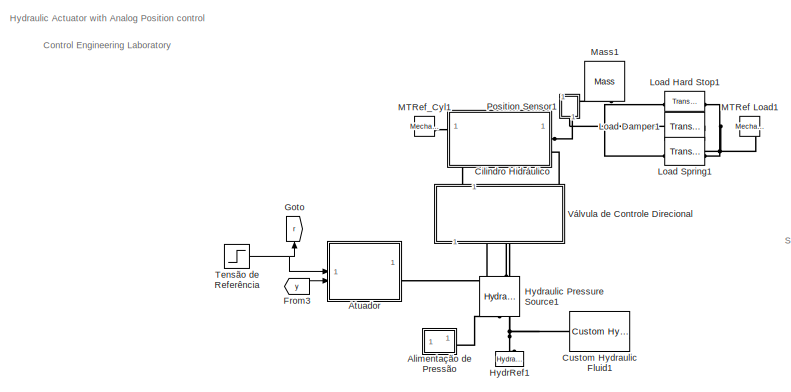
[diagram: root canvas - part 1/2, left side, full height]
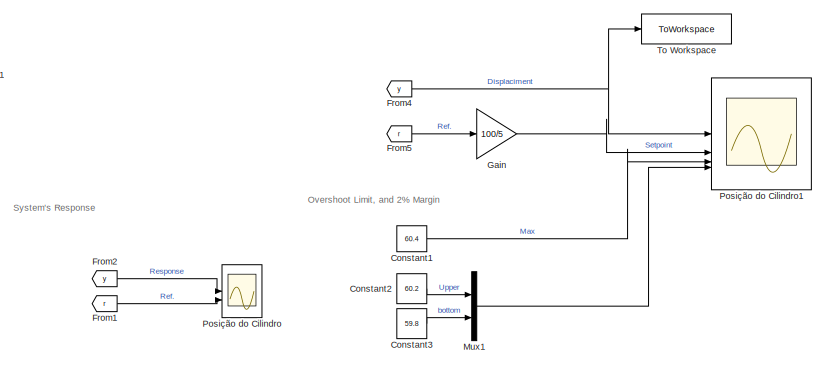
[diagram: root canvas - part 2/2, right side, full height]
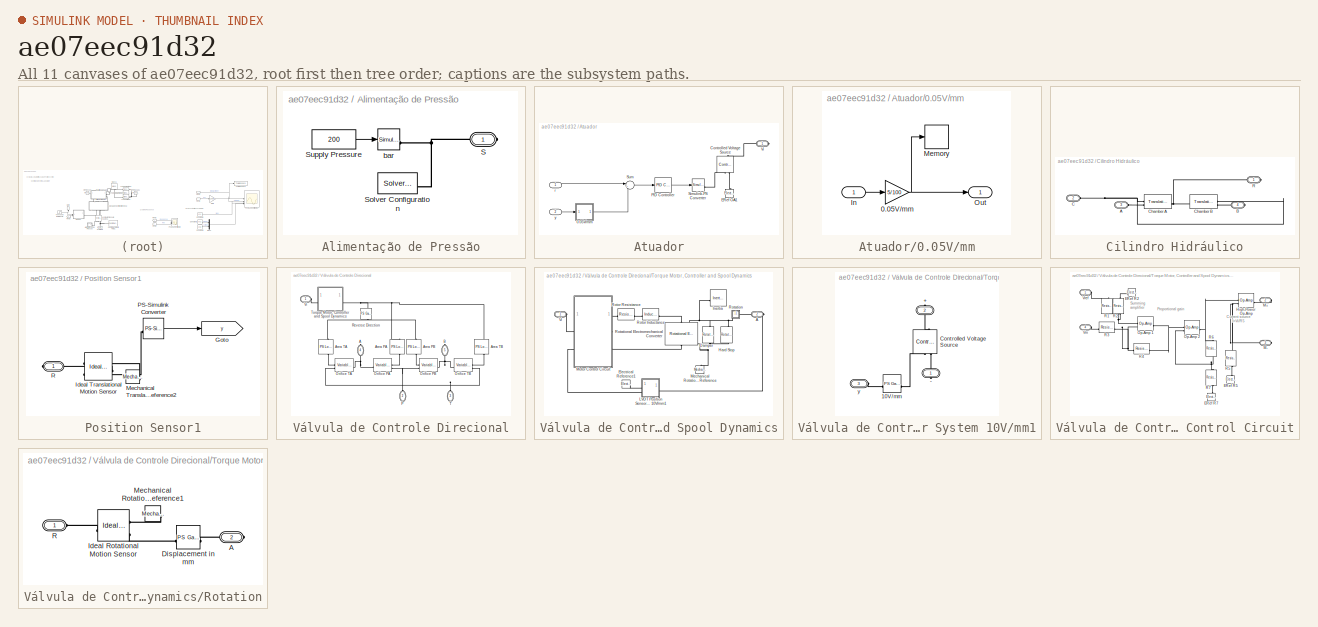
[diagram: thumbnail index - all 11 canvases of the model, root first then tree order]
MODEL slx_ae07eec91d32
KIND model
CONFIG AbsTol = 1e-3
CONFIG EnableMultiTasking = on
CONFIG FixedStep = auto
CONFIG MaxStep = 0.02
CONFIG MinStep = auto
CONFIG RelTol = 1e-3
CONFIG SampleTimeConstraint = Unconstrained
CONFIG SolverName = VariableStepAuto
CONFIG StartTime = 0.0
CONFIG StopTime = 1.5
BLOCK [SubSystem] Alimentação de Pressão
BLOCK [PMIOPort] Alimentação de Pressão/S
  Side = Right
BLOCK [Reference] Alimentação de Pressão/Solver Configuration  REF=nesl_utility/Solver
Configuration
  SourceBlock = nesl_utility/Solver\nConfiguration
  SourceType = Solver\nConfiguration
BLOCK [Constant] Alimentação de Pressão/Supply Pressure
  Value = 200
BLOCK [Reference] Alimentação de Pressão/bar  REF=nesl_utility/Simulink-PS
Converter
  SourceBlock = nesl_utility/Simulink-PS\nConverter
  SourceType = Simulink-PS\nConverter
BLOCK [SubSystem] Atuador
  NameLocation = top
BLOCK [SubSystem] Atuador/0.05V//mm
BLOCK [Gain] Atuador/0.05V//mm/0.05V//mm
  Gain = 5/100
BLOCK [Inport] Atuador/0.05V//mm/In
BLOCK [Memory] Atuador/0.05V//mm/Memory
  Commented = on
BLOCK [Outport] Atuador/0.05V//mm/Out
  VectorParamsAs1DForOutWhenUnconnected = off
BLOCK [Reference] Atuador/Controlled Voltage Source  REF=fl_lib/Electrical/Electrical Sources/Controlled Voltage
Source
  NameLocation = right
  SourceBlock = fl_lib/Electrical/Electrical Sources/Controlled Voltage\nSource
  SourceType = Controlled Voltage\nSource
BLOCK [Reference] Atuador/ERef OA1  REF=fl_lib/Electrical/Electrical Elements/Electrical Reference
  NameLocation = right
  SourceBlock = fl_lib/Electrical/Electrical Elements/Electrical Reference
  SourceType = Electrical Reference
BLOCK [Reference] Atuador/PID Controller  REF=slpidlib/PID Controller
  LibrarySourceBlock = simulink/Continuous/PID Controller
  SourceBlock = slpidlib/PID Controller
  SourceType = PID 1dof
BLOCK [Reference] Atuador/Simulink-PS Converter  REF=nesl_utility/Simulink-PS
Converter
  SourceBlock = nesl_utility/Simulink-PS\nConverter
  SourceType = Simulink-PS\nConverter
BLOCK [Sum] Atuador/Sum
  Inputs = |+-
BLOCK [PMIOPort] Atuador/Vi
  Side = Right
BLOCK [Inport] Atuador/r
BLOCK [Inport] Atuador/y
  Port = 2
BLOCK [SubSystem] Cilindro Hidráulico
  NameLocation = top
BLOCK [PMIOPort] Cilindro Hidráulico/A
  Port = 3
  Side = Left
BLOCK [PMIOPort] Cilindro Hidráulico/B
  Port = 4
  Side = Right
BLOCK [PMIOPort] Cilindro Hidráulico/C
  NameLocation = top
  Port = 2
  Side = Left
BLOCK [Reference] Cilindro Hidráulico/Chamber A  REF=fl_lib/Hydraulic/Hydraulic Elements/Translational
Hydro-Mechanical
Converter
  SourceBlock = fl_lib/Hydraulic/Hydraulic Elements/Translational\nHydro-Mechanical\nConverter
  SourceType = Translational\nHydro-Mechanical\nConverter
BLOCK [Reference] Cilindro Hidráulico/Chamber B  REF=fl_lib/Hydraulic/Hydraulic Elements/Translational
Hydro-Mechanical
Converter
  SourceBlock = fl_lib/Hydraulic/Hydraulic Elements/Translational\nHydro-Mechanical\nConverter
  SourceType = Translational\nHydro-Mechanical\nConverter
BLOCK [PMIOPort] Cilindro Hidráulico/R
  Side = Right
BLOCK [Constant] Constant1
  Value = 60.4
BLOCK [Constant] Constant2
  Value = 60.2
BLOCK [Constant] Constant3
  Value = 59.8
BLOCK [Reference] Custom Hydraulic Fluid1  REF=fl_lib/Hydraulic/Hydraulic Utilities/Custom Hydraulic
Fluid
  NameLocation = top
  SourceBlock = fl_lib/Hydraulic/Hydraulic Utilities/Custom Hydraulic\nFluid
  SourceType = Custom Hydraulic\nFluid
BLOCK [From] From1
  GotoTag = r
BLOCK [From] From2
  GotoTag = y
  TagVisibility = global
BLOCK [From] From3
  GotoTag = y
  TagVisibility = global
BLOCK [From] From4
  GotoTag = y
  TagVisibility = global
BLOCK [From] From5
  GotoTag = r
BLOCK [Gain] Gain
  Gain = 100/5
BLOCK [Goto] Goto
  GotoTag = r
  NameLocation = right
BLOCK [Reference] HydrRef1  REF=fl_lib/Hydraulic/Hydraulic Elements/Hydraulic Reference
  NameLocation = right
  SourceBlock = fl_lib/Hydraulic/Hydraulic Elements/Hydraulic Reference
  SourceType = Hydraulic Reference
BLOCK [Reference] Hydraulic Pressure Source1  REF=fl_lib/Hydraulic/Hydraulic Sources/Hydraulic Pressure
Source
  NameLocation = left
  SourceBlock = fl_lib/Hydraulic/Hydraulic Sources/Hydraulic Pressure\nSource
  SourceType = Hydraulic Pressure\nSource
BLOCK [Reference] Load Damper1  REF=fl_lib/Mechanical/Translational
Elements/Translational Damper
  SourceBlock = fl_lib/Mechanical/Translational\nElements/Translational Damper
  SourceType = Translational Damper
BLOCK [Reference] Load Hard Stop1  REF=fl_lib/Mechanical/Translational
Elements/Translational Hard
Stop
  NameLocation = top
  SourceBlock = fl_lib/Mechanical/Translational\nElements/Translational Hard\nStop
  SourceType = Translational Hard\nStop
BLOCK [Reference] Load Spring1  REF=fl_lib/Mechanical/Translational
Elements/Translational Spring
  SourceBlock = fl_lib/Mechanical/Translational\nElements/Translational Spring
  SourceType = Translational Spring
BLOCK [Reference] MTRef Load1  REF=fl_lib/Mechanical/Translational
Elements/Mechanical
Translational
Reference
  NameLocation = top
  SourceBlock = fl_lib/Mechanical/Translational\nElements/Mechanical\nTranslational\nReference
  SourceType = Mechanical\nTranslational\nReference
BLOCK [Reference] MTRef_Cyl1  REF=fl_lib/Mechanical/Translational
Elements/Mechanical
Translational
Reference
  SourceBlock = fl_lib/Mechanical/Translational\nElements/Mechanical\nTranslational\nReference
  SourceType = Mechanical\nTranslational\nReference
BLOCK [Reference] Mass1  REF=fl_lib/Mechanical/Translational
Elements/Mass
  NameLocation = right
  SourceBlock = fl_lib/Mechanical/Translational\nElements/Mass
  SourceType = Mass
BLOCK [Mux] Mux1
  DisplayOption = bar
  Inputs = 2
BLOCK [SubSystem] Position Sensor1
  NameLocation = right
BLOCK [Goto] Position Sensor1/Goto
  GotoTag = y
  TagVisibility = global
BLOCK [Reference] Position Sensor1/Ideal Translational Motion Sensor  REF=fl_lib/Mechanical/Mechanical Sensors/Ideal Translational
Motion Sensor
  NameLocation = top
  SourceBlock = fl_lib/Mechanical/Mechanical Sensors/Ideal Translational\nMotion Sensor
  SourceType = Ideal Translational\nMotion Sensor
BLOCK [Reference] Position Sensor1/Mechanical Translational Reference2  REF=fl_lib/Mechanical/Translational
Elements/Mechanical
Translational
Reference
  NameLocation = top
  SourceBlock = fl_lib/Mechanical/Translational\nElements/Mechanical\nTranslational\nReference
  SourceType = Mechanical\nTranslational\nReference
BLOCK [Reference] Position Sensor1/PS-Simulink Converter  REF=nesl_utility/PS-Simulink
Converter
  NameLocation = top
  SourceBlock = nesl_utility/PS-Simulink\nConverter
  SourceType = PS-Simulink\nConverter
BLOCK [PMIOPort] Position Sensor1/R
  Side = Right
BLOCK [Scope] Posição do Cilindro
  Floating = off
  NumInputPorts = 2
  ScopeSpecificationString = Simulink.scopes.TimeScopeBlockCfg('CurrentConfiguration', extmgr.ConfigurationSet(extmgr.Configuration('Core','General UI',true,'FigureColor',[0.501960784313725 0.501960784313725 0.501960784313725]),extmgr.Configuration('Core','Source UI',true),extmgr.Configuration('Sources','WiredSimulink',true,'DataLoggingVariableName','ScopeData1','DataLoggingSaveFormat','Array','DataLoggingDecimation','1'),ext...<+3738ch>
  Tag = PublishScope
BLOCK [Scope] Posição do Cilindro1
  Floating = off
  NumInputPorts = 4
  ScopeSpecificationString = Simulink.scopes.TimeScopeBlockCfg('CurrentConfiguration', extmgr.ConfigurationSet(extmgr.Configuration('Core','General UI',true,'FigureColor',[0.501960784313725 0.501960784313725 0.501960784313725]),extmgr.Configuration('Core','Source UI',true),extmgr.Configuration('Sources','WiredSimulink',true,'DataLoggingVariableName','ScopeData1','DataLoggingSaveFormat','Array','DataLoggingDecimation','1'),ext...<+2143ch>
  Tag = PublishScope
BLOCK [Step] Tensão de Referência
  After = 3
  Before = 2.5
  SampleTime = 0
  Time = 0.1
BLOCK [ToWorkspace] To Workspace
  FixptAsFi = on
  MaxDataPoints = inf
  SampleTime = -1
  SaveFormat = Structure With Time
  VariableName = simout
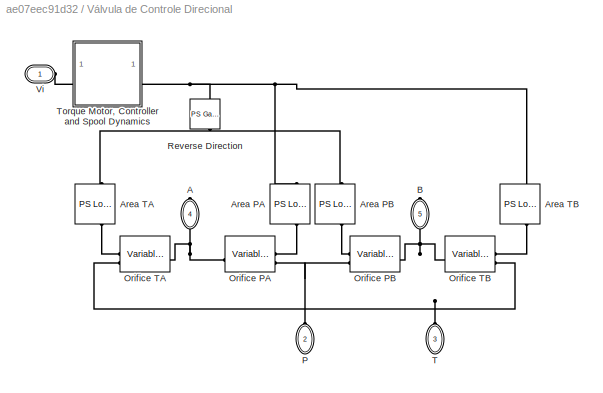
BLOCK [SubSystem] Válvula de Controle Direcional
  NameLocation = right
  Tag = PublishSubsystem
BLOCK [PMIOPort] Válvula de Controle Direcional/A
  NameLocation = right
  Port = 4
  Side = Right
  Tag = PMCPort
BLOCK [Reference] Válvula de Controle Direcional/Area PA  REF=fl_ps_legacy_lib/Legacy Physical
Signals/Lookup Tables/PS Lookup Table (1D)
  NameLocation = left
  SourceBlock = fl_ps_legacy_lib/Legacy Physical\nSignals/Lookup Tables/PS Lookup Table (1D)
  SourceType = PS Lookup Table (1D)
BLOCK [Reference] Válvula de Controle Direcional/Area PB  REF=fl_ps_legacy_lib/Legacy Physical
Signals/Lookup Tables/PS Lookup Table (1D)
  NameLocation = right
  SourceBlock = fl_ps_legacy_lib/Legacy Physical\nSignals/Lookup Tables/PS Lookup Table (1D)
  SourceType = PS Lookup Table (1D)
BLOCK [Reference] Válvula de Controle Direcional/Area TA  REF=fl_ps_legacy_lib/Legacy Physical
Signals/Lookup Tables/PS Lookup Table (1D)
  NameLocation = right
  SourceBlock = fl_ps_legacy_lib/Legacy Physical\nSignals/Lookup Tables/PS Lookup Table (1D)
  SourceType = PS Lookup Table (1D)
BLOCK [Reference] Válvula de Controle Direcional/Area TB  REF=fl_ps_legacy_lib/Legacy Physical
Signals/Lookup Tables/PS Lookup Table (1D)
  NameLocation = left
  SourceBlock = fl_ps_legacy_lib/Legacy Physical\nSignals/Lookup Tables/PS Lookup Table (1D)
  SourceType = PS Lookup Table (1D)
BLOCK [PMIOPort] Válvula de Controle Direcional/B
  NameLocation = right
  Port = 5
  Side = Right
  Tag = PMCPort
BLOCK [Reference] Válvula de Controle Direcional/Orifice PA  REF=fl_lib/Hydraulic/Hydraulic Elements/Variable Area
Hydraulic Orifice
  SourceBlock = fl_lib/Hydraulic/Hydraulic Elements/Variable Area\nHydraulic Orifice
  SourceType = Variable Area\nHydraulic Orifice
BLOCK [Reference] Válvula de Controle Direcional/Orifice PB  REF=fl_lib/Hydraulic/Hydraulic Elements/Variable Area
Hydraulic Orifice
  SourceBlock = fl_lib/Hydraulic/Hydraulic Elements/Variable Area\nHydraulic Orifice
  SourceType = Variable Area\nHydraulic Orifice
BLOCK [Reference] Válvula de Controle Direcional/Orifice TA  REF=fl_lib/Hydraulic/Hydraulic Elements/Variable Area
Hydraulic Orifice
  SourceBlock = fl_lib/Hydraulic/Hydraulic Elements/Variable Area\nHydraulic Orifice
  SourceType = Variable Area\nHydraulic Orifice
BLOCK [Reference] Válvula de Controle Direcional/Orifice TB  REF=fl_lib/Hydraulic/Hydraulic Elements/Variable Area
Hydraulic Orifice
  SourceBlock = fl_lib/Hydraulic/Hydraulic Elements/Variable Area\nHydraulic Orifice
  SourceType = Variable Area\nHydraulic Orifice
BLOCK [PMIOPort] Válvula de Controle Direcional/P
  NameLocation = right
  Port = 2
  Side = Left
  Tag = PMCPort
BLOCK [Reference] Válvula de Controle Direcional/Reverse Direction  REF=fl_ps_legacy_lib/Legacy Physical
Signals/Functions/PS Gain
  NameLocation = right
  SourceBlock = fl_ps_legacy_lib/Legacy Physical\nSignals/Functions/PS Gain
  SourceType = PS Gain
BLOCK [PMIOPort] Válvula de Controle Direcional/T
  NameLocation = right
  Port = 3
  Side = Left
  Tag = PMCPort
BLOCK [SubSystem] Válvula de Controle Direcional/Torque Motor, Controller and Spool Dynamics
BLOCK [PMIOPort] Válvula de Controle Direcional/Torque Motor, Controller and Spool Dynamics/A
  Port = 2
  Side = Right
BLOCK [Reference] Válvula de Controle Direcional/Torque Motor, Controller and Spool Dynamics/Damper  REF=fl_lib/Mechanical/Rotational Elements/Rotational Damper
  NameLocation = right
  SourceBlock = fl_lib/Mechanical/Rotational Elements/Rotational Damper
  SourceType = Rotational Damper
BLOCK [Reference] Válvula de Controle Direcional/Torque Motor, Controller and Spool Dynamics/Electrical Reference1  REF=fl_lib/Electrical/Electrical Elements/Electrical Reference
  NameLocation = top
  SourceBlock = fl_lib/Electrical/Electrical Elements/Electrical Reference
  SourceType = Electrical Reference
BLOCK [Reference] Válvula de Controle Direcional/Torque Motor, Controller and Spool Dynamics/Hard Stop  REF=fl_lib/Mechanical/Rotational Elements/Rotational Hard Stop
  NameLocation = right
  SourceBlock = fl_lib/Mechanical/Rotational Elements/Rotational Hard Stop
  SourceType = Rotational Hard Stop
BLOCK [Reference] Válvula de Controle Direcional/Torque Motor, Controller and Spool Dynamics/Inertia  REF=fl_lib/Mechanical/Rotational Elements/Inertia
  SourceBlock = fl_lib/Mechanical/Rotational Elements/Inertia
  SourceType = Inertia
BLOCK [SubSystem] Válvula de Controle Direcional/Torque Motor, Controller and Spool Dynamics/LVDT Position Sensor System 10V//mm1
BLOCK [PMIOPort] Válvula de Controle Direcional/Torque Motor, Controller and Spool Dynamics/LVDT Position Sensor System 10V//mm1/+
  NameLocation = right
  Port = 2
  Side = Right
BLOCK [PMIOPort] Válvula de Controle Direcional/Torque Motor, Controller and Spool Dynamics/LVDT Position Sensor System 10V//mm1/-
  NameLocation = right
  Side = Right
BLOCK [Reference] Válvula de Controle Direcional/Torque Motor, Controller and Spool Dynamics/LVDT Position Sensor System 10V//mm1/10V//mm  REF=fl_ps_legacy_lib/Legacy Physical
Signals/Functions/PS Gain
  SourceBlock = fl_ps_legacy_lib/Legacy Physical\nSignals/Functions/PS Gain
  SourceType = PS Gain
BLOCK [Reference] Válvula de Controle Direcional/Torque Motor, Controller and Spool Dynamics/LVDT Position Sensor System 10V//mm1/Controlled Voltage Source  REF=fl_lib/Electrical/Electrical Sources/Controlled Voltage
Source
  NameLocation = right
  SourceBlock = fl_lib/Electrical/Electrical Sources/Controlled Voltage\nSource
  SourceType = Controlled Voltage\nSource
BLOCK [PMIOPort] Válvula de Controle Direcional/Torque Motor, Controller and Spool Dynamics/LVDT Position Sensor System 10V//mm1/y
  Port = 3
  Side = Left
BLOCK [Reference] Válvula de Controle Direcional/Torque Motor, Controller and Spool Dynamics/Mechanical Rotational Reference  REF=fl_lib/Mechanical/Rotational Elements/Mechanical
Rotational Reference
  NameLocation = right
  SourceBlock = fl_lib/Mechanical/Rotational Elements/Mechanical\nRotational Reference
  SourceType = Mechanical\nRotational Reference
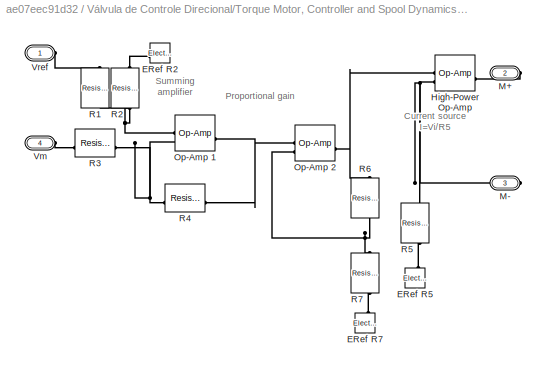
BLOCK [SubSystem] Válvula de Controle Direcional/Torque Motor, Controller and Spool Dynamics/Motor Control Circuit
  Tag = PublishSubsystem
BLOCK [Reference] Válvula de Controle Direcional/Torque Motor, Controller and Spool Dynamics/Motor Control Circuit/ERef R2  REF=fl_lib/Electrical/Electrical Elements/Electrical Reference
  NameLocation = top
  SourceBlock = fl_lib/Electrical/Electrical Elements/Electrical Reference
  SourceType = Electrical Reference
BLOCK [Reference] Válvula de Controle Direcional/Torque Motor, Controller and Spool Dynamics/Motor Control Circuit/ERef R5  REF=fl_lib/Electrical/Electrical Elements/Electrical Reference
  NameLocation = right
  SourceBlock = fl_lib/Electrical/Electrical Elements/Electrical Reference
  SourceType = Electrical Reference
BLOCK [Reference] Válvula de Controle Direcional/Torque Motor, Controller and Spool Dynamics/Motor Control Circuit/ERef R7  REF=fl_lib/Electrical/Electrical Elements/Electrical Reference
  NameLocation = left
  SourceBlock = fl_lib/Electrical/Electrical Elements/Electrical Reference
  SourceType = Electrical Reference
BLOCK [Reference] Válvula de Controle Direcional/Torque Motor, Controller and Spool Dynamics/Motor Control Circuit/High-Power Op-Amp  REF=fl_lib/Electrical/Electrical Elements/Op-Amp
  NameLocation = top
  SourceBlock = fl_lib/Electrical/Electrical Elements/Op-Amp
  SourceType = Op-Amp
BLOCK [PMIOPort] Válvula de Controle Direcional/Torque Motor, Controller and Spool Dynamics/Motor Control Circuit/M+
  Port = 2
  Side = Right
BLOCK [PMIOPort] Válvula de Controle Direcional/Torque Motor, Controller and Spool Dynamics/Motor Control Circuit/M-
  Port = 3
  Side = Right
BLOCK [Reference] Válvula de Controle Direcional/Torque Motor, Controller and Spool Dynamics/Motor Control Circuit/Op-Amp 1  REF=fl_lib/Electrical/Electrical Elements/Op-Amp
  SourceBlock = fl_lib/Electrical/Electrical Elements/Op-Amp
  SourceType = Op-Amp
BLOCK [Reference] Válvula de Controle Direcional/Torque Motor, Controller and Spool Dynamics/Motor Control Circuit/Op-Amp 2  REF=fl_lib/Electrical/Electrical Elements/Op-Amp
  SourceBlock = fl_lib/Electrical/Electrical Elements/Op-Amp
  SourceType = Op-Amp
BLOCK [Reference] Válvula de Controle Direcional/Torque Motor, Controller and Spool Dynamics/Motor Control Circuit/R1  REF=fl_lib/Electrical/Electrical Elements/Resistor
  NameLocation = left
  SourceBlock = fl_lib/Electrical/Electrical Elements/Resistor
  SourceType = Resistor
BLOCK [Reference] Válvula de Controle Direcional/Torque Motor, Controller and Spool Dynamics/Motor Control Circuit/R2  REF=fl_lib/Electrical/Electrical Elements/Resistor
  NameLocation = right
  SourceBlock = fl_lib/Electrical/Electrical Elements/Resistor
  SourceType = Resistor
BLOCK [Reference] Válvula de Controle Direcional/Torque Motor, Controller and Spool Dynamics/Motor Control Circuit/R3  REF=fl_lib/Electrical/Electrical Elements/Resistor
  SourceBlock = fl_lib/Electrical/Electrical Elements/Resistor
  SourceType = Resistor
BLOCK [Reference] Válvula de Controle Direcional/Torque Motor, Controller and Spool Dynamics/Motor Control Circuit/R4  REF=fl_lib/Electrical/Electrical Elements/Resistor
  SourceBlock = fl_lib/Electrical/Electrical Elements/Resistor
  SourceType = Resistor
BLOCK [Reference] Válvula de Controle Direcional/Torque Motor, Controller and Spool Dynamics/Motor Control Circuit/R5  REF=fl_lib/Electrical/Electrical Elements/Resistor
  NameLocation = right
  SourceBlock = fl_lib/Electrical/Electrical Elements/Resistor
  SourceType = Resistor
BLOCK [Reference] Válvula de Controle Direcional/Torque Motor, Controller and Spool Dynamics/Motor Control Circuit/R6  REF=fl_lib/Electrical/Electrical Elements/Resistor
  NameLocation = left
  SourceBlock = fl_lib/Electrical/Electrical Elements/Resistor
  SourceType = Resistor
BLOCK [Reference] Válvula de Controle Direcional/Torque Motor, Controller and Spool Dynamics/Motor Control Circuit/R7  REF=fl_lib/Electrical/Electrical Elements/Resistor
  NameLocation = left
  SourceBlock = fl_lib/Electrical/Electrical Elements/Resistor
  SourceType = Resistor
BLOCK [PMIOPort] Válvula de Controle Direcional/Torque Motor, Controller and Spool Dynamics/Motor Control Circuit/Vm
  Port = 4
  Side = Left
BLOCK [PMIOPort] Válvula de Controle Direcional/Torque Motor, Controller and Spool Dynamics/Motor Control Circuit/Vref
  Side = Left
BLOCK [SubSystem] Válvula de Controle Direcional/Torque Motor, Controller and Spool Dynamics/Rotation
BLOCK [PMIOPort] Válvula de Controle Direcional/Torque Motor, Controller and Spool Dynamics/Rotation/A
  Port = 2
  Side = Right
BLOCK [Reference] Válvula de Controle Direcional/Torque Motor, Controller and Spool Dynamics/Rotation/Displacement in mm  REF=fl_ps_legacy_lib/Legacy Physical
Signals/Functions/PS Gain
  SourceBlock = fl_ps_legacy_lib/Legacy Physical\nSignals/Functions/PS Gain
  SourceType = PS Gain
BLOCK [Reference] Válvula de Controle Direcional/Torque Motor, Controller and Spool Dynamics/Rotation/Ideal Rotational Motion Sensor  REF=fl_lib/Mechanical/Mechanical Sensors/Ideal Rotational
Motion Sensor
  SourceBlock = fl_lib/Mechanical/Mechanical Sensors/Ideal Rotational\nMotion Sensor
  SourceType = Ideal Rotational\nMotion Sensor
BLOCK [Reference] Válvula de Controle Direcional/Torque Motor, Controller and Spool Dynamics/Rotation/Mechanical Rotational Reference1  REF=fl_lib/Mechanical/Rotational Elements/Mechanical
Rotational Reference
  NameLocation = top
  SourceBlock = fl_lib/Mechanical/Rotational Elements/Mechanical\nRotational Reference
  SourceType = Mechanical\nRotational Reference
BLOCK [PMIOPort] Válvula de Controle Direcional/Torque Motor, Controller and Spool Dynamics/Rotation/R
  Side = Left
BLOCK [Reference] Válvula de Controle Direcional/Torque Motor, Controller and Spool Dynamics/Rotational Electromechanical Converter  REF=fl_lib/Electrical/Electrical Elements/Rotational
Electromechanical
Converter
  NameLocation = left
  SourceBlock = fl_lib/Electrical/Electrical Elements/Rotational\nElectromechanical\nConverter
  SourceType = Rotational\nElectromechanical\nConverter
BLOCK [Reference] Válvula de Controle Direcional/Torque Motor, Controller and Spool Dynamics/Rotor Inductance  REF=fl_lib/Electrical/Electrical Elements/Inductor
  SourceBlock = fl_lib/Electrical/Electrical Elements/Inductor
  SourceType = Inductor
BLOCK [Reference] Válvula de Controle Direcional/Torque Motor, Controller and Spool Dynamics/Rotor Resistance  REF=fl_lib/Electrical/Electrical Elements/Resistor
  SourceBlock = fl_lib/Electrical/Electrical Elements/Resistor
  SourceType = Resistor
  Tag = Factory Generic
BLOCK [PMIOPort] Válvula de Controle Direcional/Torque Motor, Controller and Spool Dynamics/Vi
  Side = Left
BLOCK [PMIOPort] Válvula de Controle Direcional/Vi
  Side = Left
  Tag = PMCPort
ANNOTATION (root): Control Engineering Laboratory
ANNOTATION (root): Hydraulic Actuator with Analog Position control
ANNOTATION (root): Overshoot Limit, and 2% Margin
ANNOTATION (root): System's Response
ANNOTATION Válvula de Controle Direcional/Torque Motor, Controller and Spool Dynamics/Motor Control Circuit: Current source I=Vi/R5
ANNOTATION Válvula de Controle Direcional/Torque Motor, Controller and Spool Dynamics/Motor Control Circuit: Proportional gain
ANNOTATION Válvula de Controle Direcional/Torque Motor, Controller and Spool Dynamics/Motor Control Circuit: Summing amplifier
LINE Alimentação de Pressão/Supply Pressure:1 -> Alimentação de Pressão/bar:1
NET Atuador/0.05V//mm/0.05V//mm:1 -> Atuador/0.05V//mm/Memory:1, Atuador/0.05V//mm/Out:1
LINE Atuador/0.05V//mm/In:1 -> Atuador/0.05V//mm/0.05V//mm:1
LINE Atuador/0.05V//mm:1 -> Atuador/Sum:2
LINE Atuador/PID Controller:1 -> Atuador/Simulink-PS Converter:1
LINE Atuador/Sum:1 -> Atuador/PID Controller:1
LINE Atuador/r:1 -> Atuador/Sum:1
LINE Atuador/y:1 -> Atuador/0.05V//mm:1
LINE Constant1:1 -> Posição do Cilindro1:3
LINE Constant2:1 -> Mux1:1
LINE Constant3:1 -> Mux1:2
LINE From1:1 -> Posição do Cilindro:2
LINE From2:1 -> Posição do Cilindro:1
LINE From3:1 -> Atuador:2
NET From4:1 -> Posição do Cilindro1:1, To Workspace:1
LINE From5:1 -> Gain:1
LINE Gain:1 -> Posição do Cilindro1:2
LINE Mux1:1 -> Posição do Cilindro1:4
LINE Position Sensor1/PS-Simulink Converter:1 -> Position Sensor1/Goto:1
NET Tensão de Referência:1 -> Atuador:1, Goto:1
PNET net1: Alimentação de Pressão/S:RConn1 -- Alimentação de Pressão/Solver Configuration:RConn1 -- Alimentação de Pressão/bar:RConn1
PLINE Alimentação de Pressão:RConn1 -- Hydraulic Pressure Source1:RConn1
PLINE Atuador/Controlled Voltage Source:LConn1 -- Atuador/Vi:RConn1
PLINE Atuador/Controlled Voltage Source:RConn1 -- Atuador/Simulink-PS Converter:RConn1
PLINE Atuador/Controlled Voltage Source:RConn2 -- Atuador/ERef OA1:LConn1
PLINE Atuador:RConn1 -- Válvula de Controle Direcional:LConn1
PLINE Cilindro Hidráulico/A:RConn1 -- Cilindro Hidráulico/Chamber A:LConn2
PLINE Cilindro Hidráulico/B:RConn1 -- Cilindro Hidráulico/Chamber B:LConn2
PNET net2: Cilindro Hidráulico/C:RConn1 -- Cilindro Hidráulico/Chamber A:LConn1 -- Cilindro Hidráulico/Chamber B:LConn1
PNET net3: Cilindro Hidráulico/Chamber A:RConn1 -- Cilindro Hidráulico/Chamber B:RConn1 -- Cilindro Hidráulico/R:RConn1
PLINE Cilindro Hidráulico:LConn1 -- MTRef_Cyl1:LConn1
PLINE Cilindro Hidráulico:LConn2 -- Válvula de Controle Direcional:RConn1
PNET net4: Cilindro Hidráulico:RConn1 -- Load Damper1:LConn1 -- Load Hard Stop1:LConn1 -- Load Spring1:LConn1 -- Mass1:LConn1 -- Position Sensor1:RConn1
PLINE Cilindro Hidráulico:RConn2 -- Válvula de Controle Direcional:RConn2
PNET net5: Custom Hydraulic Fluid1:RConn1 -- HydrRef1:LConn1 -- Hydraulic Pressure Source1:RConn2 -- Válvula de Controle Direcional:LConn3
PLINE Hydraulic Pressure Source1:LConn1 -- Válvula de Controle Direcional:LConn2
PNET net6: Load Damper1:RConn1 -- Load Hard Stop1:RConn1 -- Load Spring1:RConn1 -- MTRef Load1:LConn1
PLINE Position Sensor1/Ideal Translational Motion Sensor:LConn1 -- Position Sensor1/R:RConn1
PLINE Position Sensor1/Ideal Translational Motion Sensor:RConn1 -- Position Sensor1/Mechanical Translational Reference2:LConn1
PLINE Position Sensor1/Ideal Translational Motion Sensor:RConn3 -- Position Sensor1/PS-Simulink Converter:LConn1
PNET net7: Válvula de Controle Direcional/A:RConn1 -- Válvula de Controle Direcional/Orifice PA:RConn1 -- Válvula de Controle Direcional/Orifice TA:RConn1
PNET net8: Válvula de Controle Direcional/Area PA:LConn1 -- Válvula de Controle Direcional/Area TB:LConn1 -- Válvula de Controle Direcional/Reverse Direction:LConn1 -- Válvula de Controle Direcional/Torque Motor, Controller and Spool Dynamics:RConn1
PLINE Válvula de Controle Direcional/Area PA:RConn1 -- Válvula de Controle Direcional/Orifice PA:LConn1
PNET net9: Válvula de Controle Direcional/Area PB:LConn1 -- Válvula de Controle Direcional/Area TA:LConn1 -- Válvula de Controle Direcional/Reverse Direction:RConn1
PLINE Válvula de Controle Direcional/Area PB:RConn1 -- Válvula de Controle Direcional/Orifice PB:LConn1
PLINE Válvula de Controle Direcional/Area TA:RConn1 -- Válvula de Controle Direcional/Orifice TA:LConn1
PLINE Válvula de Controle Direcional/Area TB:RConn1 -- Válvula de Controle Direcional/Orifice TB:LConn1
PNET net10: Válvula de Controle Direcional/B:RConn1 -- Válvula de Controle Direcional/Orifice PB:RConn1 -- Válvula de Controle Direcional/Orifice TB:RConn1
PNET net11: Válvula de Controle Direcional/Orifice PA:LConn2 -- Válvula de Controle Direcional/Orifice PB:LConn2 -- Válvula de Controle Direcional/P:RConn1
PNET net12: Válvula de Controle Direcional/Orifice TA:LConn2 -- Válvula de Controle Direcional/Orifice TB:LConn2 -- Válvula de Controle Direcional/T:RConn1
PNET net13: Válvula de Controle Direcional/Torque Motor, Controller and Spool Dynamics/A:RConn1 -- Válvula de Controle Direcional/Torque Motor, Controller and Spool Dynamics/LVDT Position Sensor System 10V//mm1:LConn1 -- Válvula de Controle Direcional/Torque Motor, Controller and Spool Dynamics/Rotation:RConn1
PNET net14: Válvula de Controle Direcional/Torque Motor, Controller and Spool Dynamics/Damper:LConn1 -- Válvula de Controle Direcional/Torque Motor, Controller and Spool Dynamics/Hard Stop:LConn1 -- Válvula de Controle Direcional/Torque Motor, Controller and Spool Dynamics/Inertia:LConn1 -- Válvula de Controle Direcional/Torque Motor, Controller and Spool Dynamics/Rotation:LConn1 -- Válvula de Controle Direcional/Torque Motor, Controller and Spool Dynamics/Rotational Electromechanical Converter:LConn2
PNET net15: Válvula de Controle Direcional/Torque Motor, Controller and Spool Dynamics/Damper:RConn1 -- Válvula de Controle Direcional/Torque Motor, Controller and Spool Dynamics/Hard Stop:RConn1 -- Válvula de Controle Direcional/Torque Motor, Controller and Spool Dynamics/Mechanical Rotational Reference:LConn1 -- Válvula de Controle Direcional/Torque Motor, Controller and Spool Dynamics/Rotational Electromechanical Converter:RConn2
PLINE Válvula de Controle Direcional/Torque Motor, Controller and Spool Dynamics/Electrical Reference1:LConn1 -- Válvula de Controle Direcional/Torque Motor, Controller and Spool Dynamics/LVDT Position Sensor System 10V//mm1:RConn1
PLINE Válvula de Controle Direcional/Torque Motor, Controller and Spool Dynamics/LVDT Position Sensor System 10V//mm1/+:RConn1 -- Válvula de Controle Direcional/Torque Motor, Controller and Spool Dynamics/LVDT Position Sensor System 10V//mm1/Controlled Voltage Source:LConn1
PLINE Válvula de Controle Direcional/Torque Motor, Controller and Spool Dynamics/LVDT Position Sensor System 10V//mm1/-:RConn1 -- Válvula de Controle Direcional/Torque Motor, Controller and Spool Dynamics/LVDT Position Sensor System 10V//mm1/Controlled Voltage Source:RConn2
PLINE Válvula de Controle Direcional/Torque Motor, Controller and Spool Dynamics/LVDT Position Sensor System 10V//mm1/10V//mm:LConn1 -- Válvula de Controle Direcional/Torque Motor, Controller and Spool Dynamics/LVDT Position Sensor System 10V//mm1/y:RConn1
PLINE Válvula de Controle Direcional/Torque Motor, Controller and Spool Dynamics/LVDT Position Sensor System 10V//mm1/10V//mm:RConn1 -- Válvula de Controle Direcional/Torque Motor, Controller and Spool Dynamics/LVDT Position Sensor System 10V//mm1/Controlled Voltage Source:RConn1
PLINE Válvula de Controle Direcional/Torque Motor, Controller and Spool Dynamics/LVDT Position Sensor System 10V//mm1:RConn2 -- Válvula de Controle Direcional/Torque Motor, Controller and Spool Dynamics/Motor Control Circuit:LConn2
PLINE Válvula de Controle Direcional/Torque Motor, Controller and Spool Dynamics/Motor Control Circuit/ERef R2:LConn1 -- Válvula de Controle Direcional/Torque Motor, Controller and Spool Dynamics/Motor Control Circuit/R2:RConn1
PLINE Válvula de Controle Direcional/Torque Motor, Controller and Spool Dynamics/Motor Control Circuit/ERef R5:LConn1 -- Válvula de Controle Direcional/Torque Motor, Controller and Spool Dynamics/Motor Control Circuit/R5:RConn1
PLINE Válvula de Controle Direcional/Torque Motor, Controller and Spool Dynamics/Motor Control Circuit/ERef R7:LConn1 -- Válvula de Controle Direcional/Torque Motor, Controller and Spool Dynamics/Motor Control Circuit/R7:RConn1
PNET net16: Válvula de Controle Direcional/Torque Motor, Controller and Spool Dynamics/Motor Control Circuit/High-Power Op-Amp:LConn1 -- Válvula de Controle Direcional/Torque Motor, Controller and Spool Dynamics/Motor Control Circuit/Op-Amp 2:RConn1 -- Válvula de Controle Direcional/Torque Motor, Controller and Spool Dynamics/Motor Control Circuit/R6:LConn1
PNET net17: Válvula de Controle Direcional/Torque Motor, Controller and Spool Dynamics/Motor Control Circuit/High-Power Op-Amp:LConn2 -- Válvula de Controle Direcional/Torque Motor, Controller and Spool Dynamics/Motor Control Circuit/M-:RConn1 -- Válvula de Controle Direcional/Torque Motor, Controller and Spool Dynamics/Motor Control Circuit/R5:LConn1
PLINE Válvula de Controle Direcional/Torque Motor, Controller and Spool Dynamics/Motor Control Circuit/High-Power Op-Amp:RConn1 -- Válvula de Controle Direcional/Torque Motor, Controller and Spool Dynamics/Motor Control Circuit/M+:RConn1
PNET net18: Válvula de Controle Direcional/Torque Motor, Controller and Spool Dynamics/Motor Control Circuit/Op-Amp 1:LConn1 -- Válvula de Controle Direcional/Torque Motor, Controller and Spool Dynamics/Motor Control Circuit/R1:RConn1 -- Válvula de Controle Direcional/Torque Motor, Controller and Spool Dynamics/Motor Control Circuit/R2:LConn1
PNET net19: Válvula de Controle Direcional/Torque Motor, Controller and Spool Dynamics/Motor Control Circuit/Op-Amp 1:LConn2 -- Válvula de Controle Direcional/Torque Motor, Controller and Spool Dynamics/Motor Control Circuit/R3:RConn1 -- Válvula de Controle Direcional/Torque Motor, Controller and Spool Dynamics/Motor Control Circuit/R4:LConn1
PNET net20: Válvula de Controle Direcional/Torque Motor, Controller and Spool Dynamics/Motor Control Circuit/Op-Amp 1:RConn1 -- Válvula de Controle Direcional/Torque Motor, Controller and Spool Dynamics/Motor Control Circuit/Op-Amp 2:LConn1 -- Válvula de Controle Direcional/Torque Motor, Controller and Spool Dynamics/Motor Control Circuit/R4:RConn1
PNET net21: Válvula de Controle Direcional/Torque Motor, Controller and Spool Dynamics/Motor Control Circuit/Op-Amp 2:LConn2 -- Válvula de Controle Direcional/Torque Motor, Controller and Spool Dynamics/Motor Control Circuit/R6:RConn1 -- Válvula de Controle Direcional/Torque Motor, Controller and Spool Dynamics/Motor Control Circuit/R7:LConn1
PLINE Válvula de Controle Direcional/Torque Motor, Controller and Spool Dynamics/Motor Control Circuit/R1:LConn1 -- Válvula de Controle Direcional/Torque Motor, Controller and Spool Dynamics/Motor Control Circuit/Vref:RConn1
PLINE Válvula de Controle Direcional/Torque Motor, Controller and Spool Dynamics/Motor Control Circuit/R3:LConn1 -- Válvula de Controle Direcional/Torque Motor, Controller and Spool Dynamics/Motor Control Circuit/Vm:RConn1
PLINE Válvula de Controle Direcional/Torque Motor, Controller and Spool Dynamics/Motor Control Circuit:LConn1 -- Válvula de Controle Direcional/Torque Motor, Controller and Spool Dynamics/Vi:RConn1
PLINE Válvula de Controle Direcional/Torque Motor, Controller and Spool Dynamics/Motor Control Circuit:RConn1 -- Válvula de Controle Direcional/Torque Motor, Controller and Spool Dynamics/Rotor Resistance:LConn1
PLINE Válvula de Controle Direcional/Torque Motor, Controller and Spool Dynamics/Motor Control Circuit:RConn2 -- Válvula de Controle Direcional/Torque Motor, Controller and Spool Dynamics/Rotational Electromechanical Converter:RConn1
PLINE Válvula de Controle Direcional/Torque Motor, Controller and Spool Dynamics/Rotation/A:RConn1 -- Válvula de Controle Direcional/Torque Motor, Controller and Spool Dynamics/Rotation/Displacement in mm:RConn1
PLINE Válvula de Controle Direcional/Torque Motor, Controller and Spool Dynamics/Rotation/Displacement in mm:LConn1 -- Válvula de Controle Direcional/Torque Motor, Controller and Spool Dynamics/Rotation/Ideal Rotational Motion Sensor:RConn3
PLINE Válvula de Controle Direcional/Torque Motor, Controller and Spool Dynamics/Rotation/Ideal Rotational Motion Sensor:LConn1 -- Válvula de Controle Direcional/Torque Motor, Controller and Spool Dynamics/Rotation/R:RConn1
PLINE Válvula de Controle Direcional/Torque Motor, Controller and Spool Dynamics/Rotation/Ideal Rotational Motion Sensor:RConn1 -- Válvula de Controle Direcional/Torque Motor, Controller and Spool Dynamics/Rotation/Mechanical Rotational Reference1:LConn1
PLINE Válvula de Controle Direcional/Torque Motor, Controller and Spool Dynamics/Rotational Electromechanical Converter:LConn1 -- Válvula de Controle Direcional/Torque Motor, Controller and Spool Dynamics/Rotor Inductance:RConn1
PLINE Válvula de Controle Direcional/Torque Motor, Controller and Spool Dynamics/Rotor Inductance:LConn1 -- Válvula de Controle Direcional/Torque Motor, Controller and Spool Dynamics/Rotor Resistance:RConn1
PLINE Válvula de Controle Direcional/Torque Motor, Controller and Spool Dynamics:LConn1 -- Válvula de Controle Direcional/Vi:RConn1
note: NET lines group one-source signal fan-out (src -> all destinations, sorted); 1:1 wires keep LINE; PNET lines group multi-terminal physical nets as a canonical sorted terminal list (undirected conserving connections); 2-terminal nets keep the pairwise PLINE form
